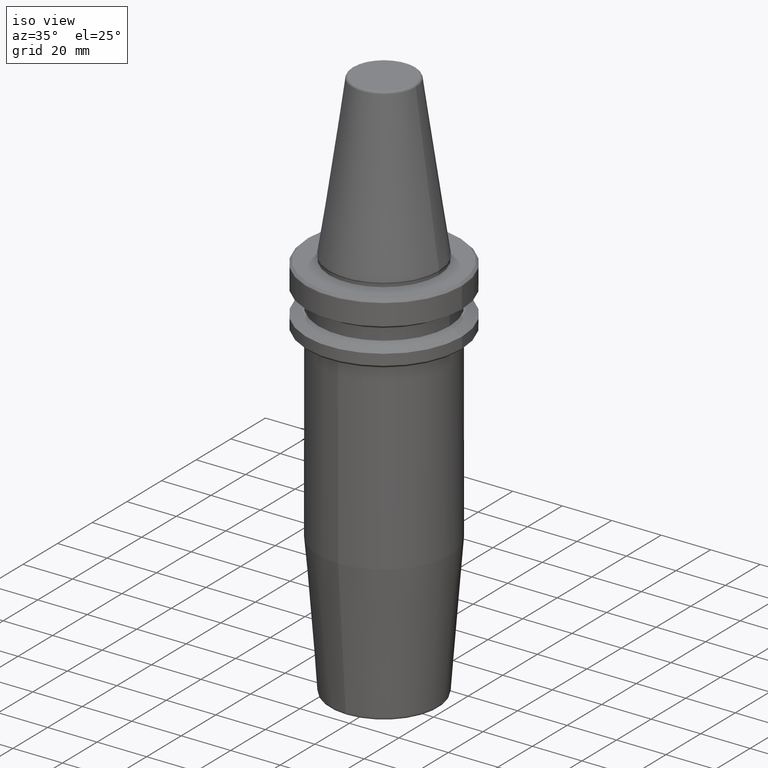
[diagram: clean part render]
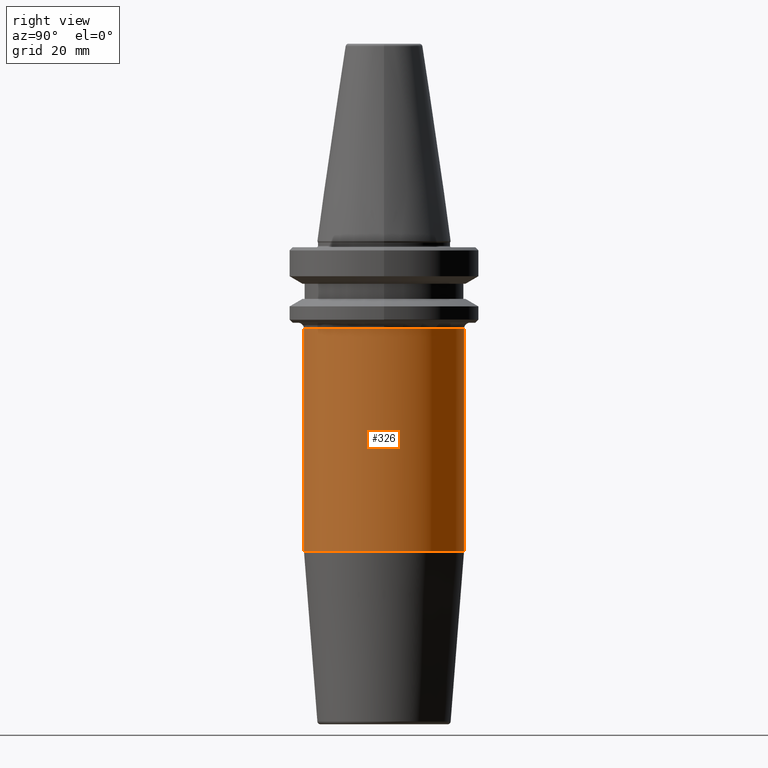
[diagram: tour spotlight — one face highlighted and labeled with its STEP entity id]
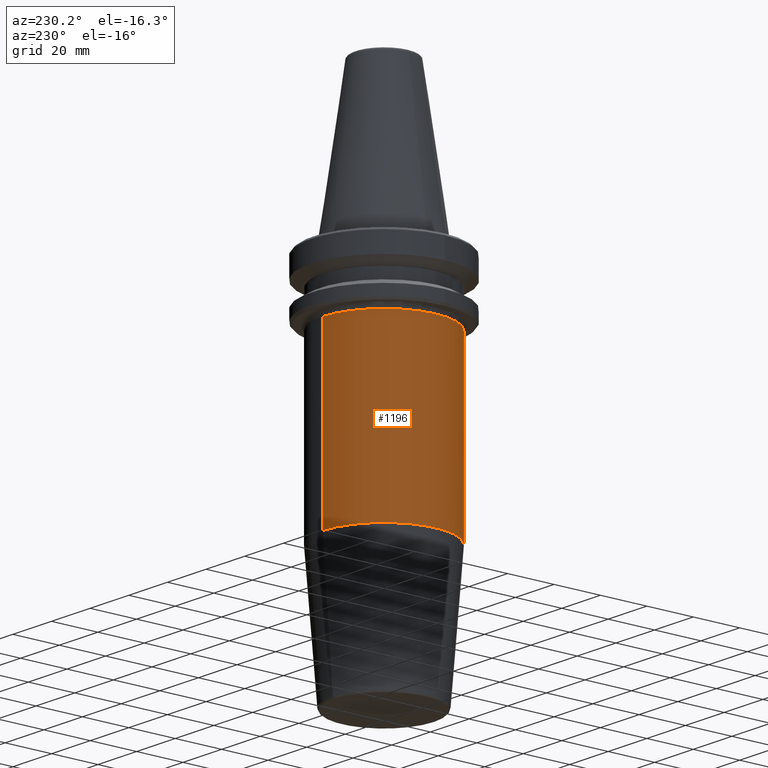
[diagram: tour spotlight — one face highlighted and labeled with its STEP entity id]
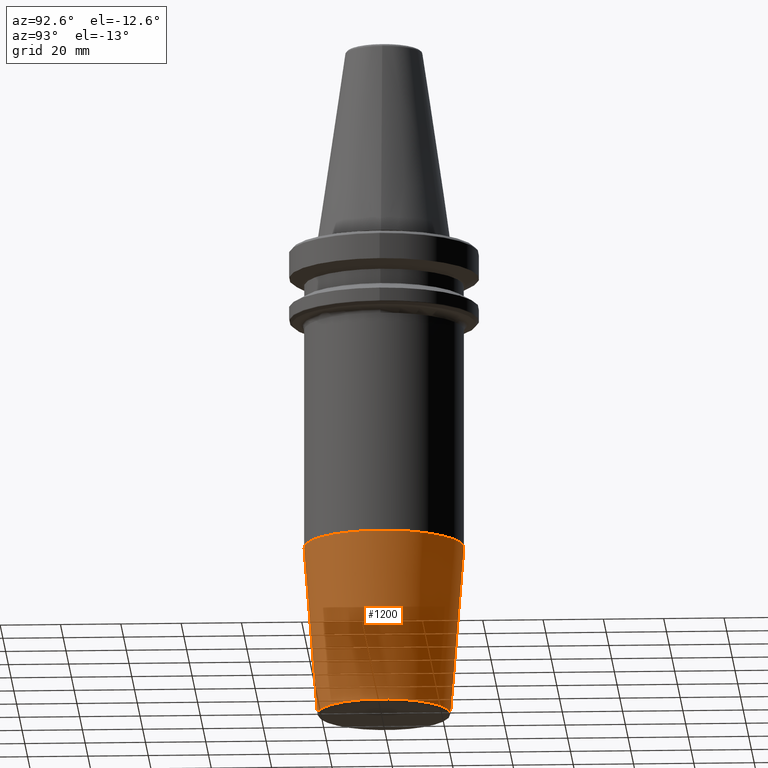
[diagram: tour spotlight — one face highlighted and labeled with its STEP entity id]
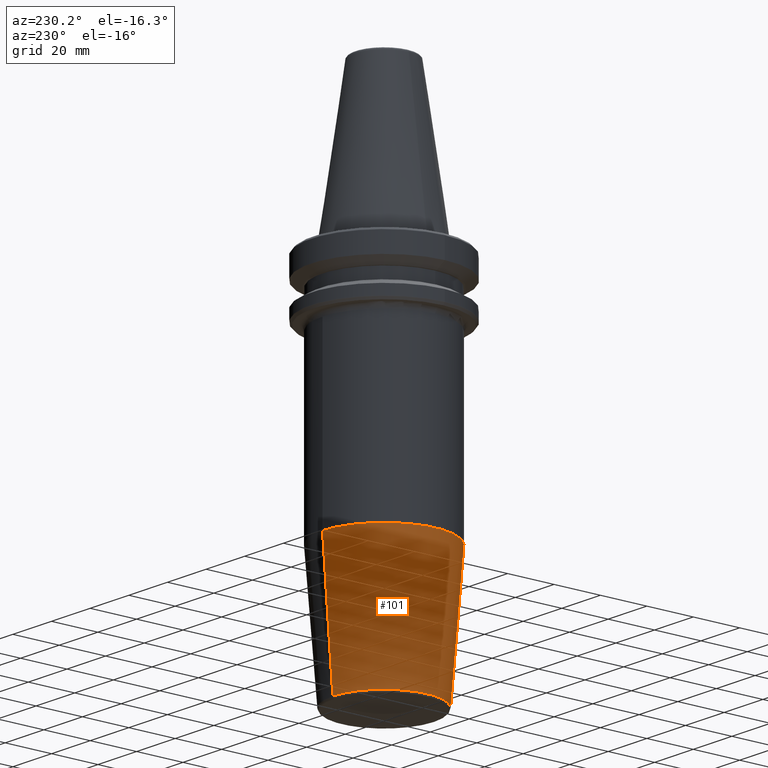
[diagram: tour spotlight — one face highlighted and labeled with its STEP entity id]
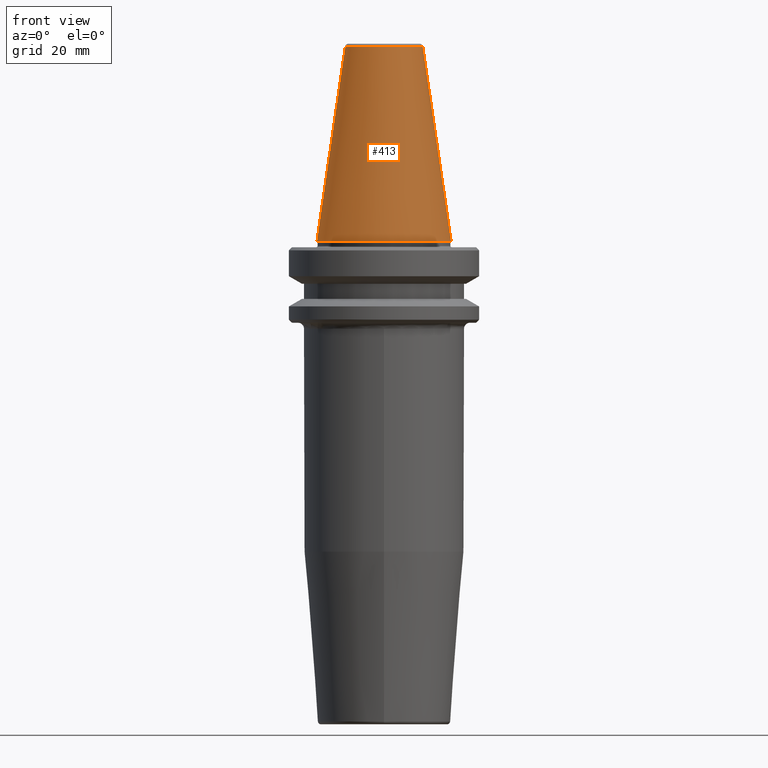
[diagram: tour spotlight — one face highlighted and labeled with its STEP entity id]
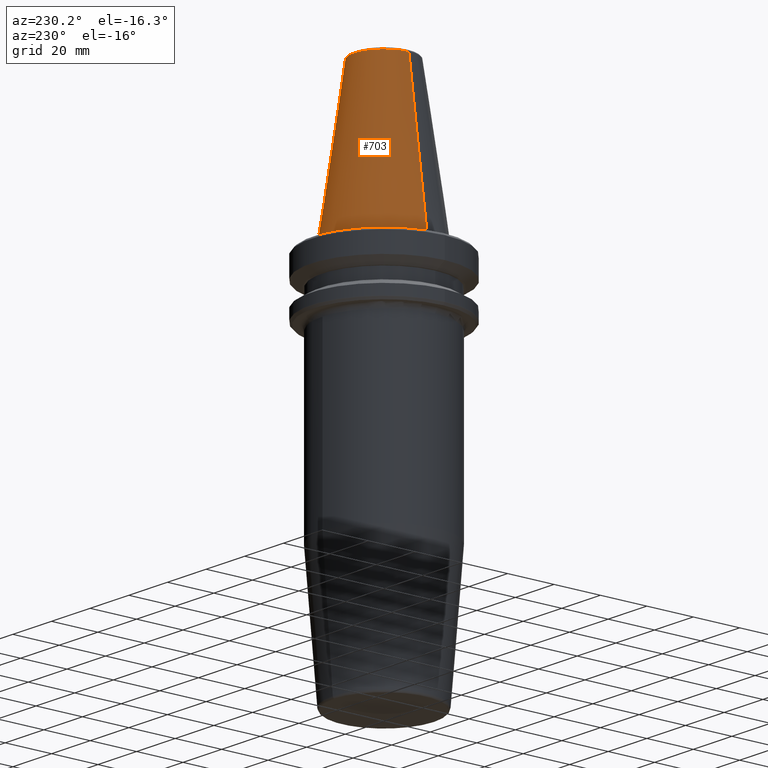
[diagram: tour spotlight — one face highlighted and labeled with its STEP entity id]
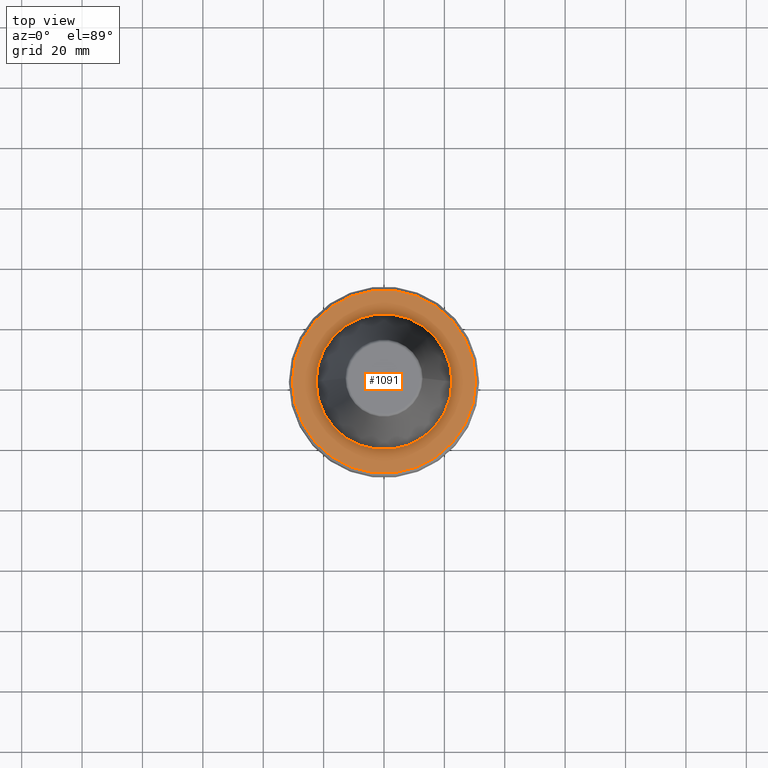
[diagram: tour spotlight — one face highlighted and labeled with its STEP entity id]
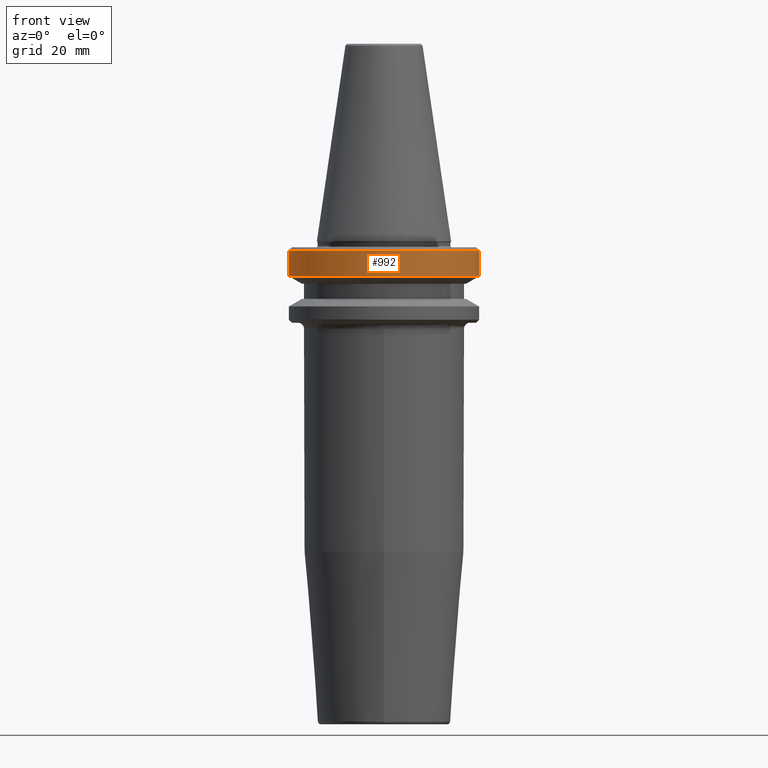
[diagram: tour spotlight — one face highlighted and labeled with its STEP entity id]
A machine part: a face-by-face anatomy tour. The part has 46 B-rep faces; the first image is the clean iso view, then the 8 largest visible faces are spotlighted one at a time (largest first), each with its STEP entity span.

Face 1 — right view, entity #326. In plain terms, the highlighted cylindrical surface (partial cylindrical patch) has radius 26.5 mm, axis along (-0, 0, -1).
Definition (entity closure, byte-faithful):
#55 = CYLINDRICAL_SURFACE ( 'NONE', #989, 26.49999999999999300 ) ;
#86 = FACE_OUTER_BOUND ( 'NONE', #943, .T. ) ;
#139 = CIRCLE ( 'NONE', #186, 26.49999999999999300 ) ;
#149 = ORIENTED_EDGE ( 'NONE', *, *, #713, .T. ) ;
#180 = VECTOR ( 'NONE', #340, 1000.000000000000000 ) ;
#185 = CARTESIAN_POINT ( 'NONE',  ( 3.245314017740485000E-015, -26.49999999999998200, -160.0000000000000000 ) ) ;
#186 = AXIS2_PLACEMENT_3D ( 'NONE', #334, #1009, #428 ) ;
#197 = ORIENTED_EDGE ( 'NONE', *, *, #953, .T. ) ;
#216 = AXIS2_PLACEMENT_3D ( 'NONE', #294, #976, #399 ) ;
#219 = VERTEX_POINT ( 'NONE', #1020 ) ;
#225 = EDGE_CURVE ( 'NONE', #779, #633, #749, .T. ) ;
#294 = CARTESIAN_POINT ( 'NONE',  ( 0.0000000000000000000, 1.510090789926056700E-016, -28.99999999999999600 ) ) ;
#298 = VECTOR ( 'NONE', #591, 1000.000000000000000 ) ;
#326 = ADVANCED_FACE ( 'NONE', ( #86 ), #55, .T. ) ;
#334 = CARTESIAN_POINT ( 'NONE',  ( 0.0000000000000000000, 1.510090789926056700E-016, -28.99999999999999600 ) ) ;
#340 = DIRECTION ( 'NONE',  ( -0.0000000000000000000, 7.550453949630299600E-017, -1.000000000000000000 ) ) ;
#348 = DIRECTION ( 'NONE',  ( -0.0000000000000000000, 7.550453949630299600E-017, -1.000000000000000000 ) ) ;
#355 = DIRECTION ( 'NONE',  ( -0.0000000000000000000, 7.550453949630299600E-017, -1.000000000000000000 ) ) ;
#357 = DIRECTION ( 'NONE',  ( 0.0000000000000000000, 1.000000000000000000, 0.0000000000000000000 ) ) ;
#384 = ORIENTED_EDGE ( 'NONE', *, *, #225, .T. ) ;
#399 = DIRECTION ( 'NONE',  ( -1.000000000000000000, 0.0000000000000000000, 0.0000000000000000000 ) ) ;
#428 = DIRECTION ( 'NONE',  ( -1.000000000000000000, 0.0000000000000000000, 0.0000000000000000000 ) ) ;
#522 = EDGE_CURVE ( 'NONE', #219, #704, #789, .T. ) ;
#530 = CARTESIAN_POINT ( 'NONE',  ( 26.49999999999999600, 3.518787776647826400E-015, -28.99999999999999600 ) ) ;
#591 = DIRECTION ( 'NONE',  ( -0.0000000000000000000, 7.550453949630299600E-017, -1.000000000000000000 ) ) ;
#633 = VERTEX_POINT ( 'NONE', #770 ) ;
#660 = CARTESIAN_POINT ( 'NONE',  ( 0.0000000000000000000, 1.004210375300829800E-014, -160.0000000000000000 ) ) ;
#704 = VERTEX_POINT ( 'NONE', #1077 ) ;
#713 = EDGE_CURVE ( 'NONE', #973, #779, #865, .T. ) ;
#749 = LINE ( 'NONE', #185, #180 ) ;
#770 = CARTESIAN_POINT ( 'NONE',  ( 0.0000000000000000000, -26.49999999999998900, -102.8220786872036000 ) ) ;
#779 = VERTEX_POINT ( 'NONE', #1271 ) ;
#789 = LINE ( 'NONE', #1269, #298 ) ;
#855 = ORIENTED_EDGE ( 'NONE', *, *, #1041, .F. ) ;
#858 = AXIS2_PLACEMENT_3D ( 'NONE', #930, #348, #1028 ) ;
#865 = CIRCLE ( 'NONE', #216, 26.49999999999999300 ) ;
#925 = CIRCLE ( 'NONE', #858, 26.49999999999999600 ) ;
#930 = CARTESIAN_POINT ( 'NONE',  ( 0.0000000000000000000, 5.724911134929757400E-015, -102.8220786872036000 ) ) ;
#943 = EDGE_LOOP ( 'NONE', ( #197, #149, #384, #855, #1182 ) ) ;
#953 = EDGE_CURVE ( 'NONE', #219, #973, #139, .T. ) ;
#973 = VERTEX_POINT ( 'NONE', #530 ) ;
#976 = DIRECTION ( 'NONE',  ( 0.0000000000000000000, 0.0000000000000000000, -1.000000000000000000 ) ) ;
#989 = AXIS2_PLACEMENT_3D ( 'NONE', #660, #355, #357 ) ;
#1009 = DIRECTION ( 'NONE',  ( 0.0000000000000000000, 0.0000000000000000000, -1.000000000000000000 ) ) ;
#1020 = CARTESIAN_POINT ( 'NONE',  ( 0.0000000000000000000, 26.49999999999999300, -28.99999999999999600 ) ) ;
#1028 = DIRECTION ( 'NONE',  ( 0.0000000000000000000, 1.000000000000000000, 0.0000000000000000000 ) ) ;
#1041 = EDGE_CURVE ( 'NONE', #704, #633, #925, .T. ) ;
#1077 = CARTESIAN_POINT ( 'NONE',  ( 3.245314017740485400E-015, 26.50000000000000400, -102.8220786872036000 ) ) ;
#1182 = ORIENTED_EDGE ( 'NONE', *, *, #522, .F. ) ;
#1269 = CARTESIAN_POINT ( 'NONE',  ( 0.0000000000000000000, 26.50000000000000400, -160.0000000000000000 ) ) ;
#1271 = CARTESIAN_POINT ( 'NONE',  ( 3.245314017740485800E-015, -26.49999999999999600, -28.99999999999999600 ) ) ;

Face 2 — auxiliary view, entity #1196. In plain terms, the highlighted cylindrical surface (partial cylindrical patch) has radius 26.5 mm, axis along (-0, 0, -1).
Definition (entity closure, byte-faithful):
#70 = EDGE_CURVE ( 'NONE', #779, #630, #769, .T. ) ;
#124 = CARTESIAN_POINT ( 'NONE',  ( 0.0000000000000000000, 1.510090789926056700E-016, -28.99999999999999600 ) ) ;
#146 = CARTESIAN_POINT ( 'NONE',  ( 0.0000000000000000000, 1.004210375300829800E-014, -160.0000000000000000 ) ) ;
#180 = VECTOR ( 'NONE', #340, 1000.000000000000000 ) ;
#185 = CARTESIAN_POINT ( 'NONE',  ( 3.245314017740485000E-015, -26.49999999999998200, -160.0000000000000000 ) ) ;
#219 = VERTEX_POINT ( 'NONE', #1020 ) ;
#225 = EDGE_CURVE ( 'NONE', #779, #633, #749, .T. ) ;
#269 = ORIENTED_EDGE ( 'NONE', *, *, #522, .T. ) ;
#298 = VECTOR ( 'NONE', #591, 1000.000000000000000 ) ;
#309 = ORIENTED_EDGE ( 'NONE', *, *, #70, .T. ) ;
#321 = ORIENTED_EDGE ( 'NONE', *, *, #397, .T. ) ;
#327 = DIRECTION ( 'NONE',  ( -1.000000000000000000, 0.0000000000000000000, 0.0000000000000000000 ) ) ;
#340 = DIRECTION ( 'NONE',  ( -0.0000000000000000000, 7.550453949630299600E-017, -1.000000000000000000 ) ) ;
#376 = EDGE_CURVE ( 'NONE', #633, #704, #823, .T. ) ;
#397 = EDGE_CURVE ( 'NONE', #630, #219, #565, .T. ) ;
#427 = AXIS2_PLACEMENT_3D ( 'NONE', #124, #611, #820 ) ;
#440 = CARTESIAN_POINT ( 'NONE',  ( 0.0000000000000000000, 5.724911134929757400E-015, -102.8220786872036000 ) ) ;
#443 = EDGE_LOOP ( 'NONE', ( #902, #309, #321, #269, #606 ) ) ;
#479 = DIRECTION ( 'NONE',  ( -0.0000000000000000000, 7.550453949630299600E-017, -1.000000000000000000 ) ) ;
#480 = CYLINDRICAL_SURFACE ( 'NONE', #557, 26.49999999999999300 ) ;
#522 = EDGE_CURVE ( 'NONE', #219, #704, #789, .T. ) ;
#557 = AXIS2_PLACEMENT_3D ( 'NONE', #146, #1054, #949 ) ;
#565 = CIRCLE ( 'NONE', #1188, 26.49999999999999300 ) ;
#591 = DIRECTION ( 'NONE',  ( -0.0000000000000000000, 7.550453949630299600E-017, -1.000000000000000000 ) ) ;
#606 = ORIENTED_EDGE ( 'NONE', *, *, #376, .F. ) ;
#611 = DIRECTION ( 'NONE',  ( 0.0000000000000000000, 0.0000000000000000000, -1.000000000000000000 ) ) ;
#612 = DIRECTION ( 'NONE',  ( 0.0000000000000000000, 1.000000000000000000, 0.0000000000000000000 ) ) ;
#630 = VERTEX_POINT ( 'NONE', #961 ) ;
#633 = VERTEX_POINT ( 'NONE', #770 ) ;
#704 = VERTEX_POINT ( 'NONE', #1077 ) ;
#724 = DIRECTION ( 'NONE',  ( 0.0000000000000000000, 0.0000000000000000000, -1.000000000000000000 ) ) ;
#749 = LINE ( 'NONE', #185, #180 ) ;
#769 = CIRCLE ( 'NONE', #427, 26.49999999999999300 ) ;
#770 = CARTESIAN_POINT ( 'NONE',  ( 0.0000000000000000000, -26.49999999999998900, -102.8220786872036000 ) ) ;
#771 = CARTESIAN_POINT ( 'NONE',  ( 0.0000000000000000000, 1.510090789926056700E-016, -28.99999999999999600 ) ) ;
#779 = VERTEX_POINT ( 'NONE', #1271 ) ;
#789 = LINE ( 'NONE', #1269, #298 ) ;
#820 = DIRECTION ( 'NONE',  ( -1.000000000000000000, 0.0000000000000000000, 0.0000000000000000000 ) ) ;
#823 = CIRCLE ( 'NONE', #1060, 26.49999999999999600 ) ;
#902 = ORIENTED_EDGE ( 'NONE', *, *, #225, .F. ) ;
#949 = DIRECTION ( 'NONE',  ( 0.0000000000000000000, 1.000000000000000000, 0.0000000000000000000 ) ) ;
#961 = CARTESIAN_POINT ( 'NONE',  ( -26.49999999999999600, 1.510090789926056700E-016, -28.99999999999999600 ) ) ;
#1020 = CARTESIAN_POINT ( 'NONE',  ( 0.0000000000000000000, 26.49999999999999300, -28.99999999999999600 ) ) ;
#1029 = FACE_OUTER_BOUND ( 'NONE', #443, .T. ) ;
#1054 = DIRECTION ( 'NONE',  ( -0.0000000000000000000, 7.550453949630299600E-017, -1.000000000000000000 ) ) ;
#1060 = AXIS2_PLACEMENT_3D ( 'NONE', #440, #479, #612 ) ;
#1077 = CARTESIAN_POINT ( 'NONE',  ( 3.245314017740485400E-015, 26.50000000000000400, -102.8220786872036000 ) ) ;
#1188 = AXIS2_PLACEMENT_3D ( 'NONE', #771, #724, #327 ) ;
#1196 = ADVANCED_FACE ( 'NONE', ( #1029 ), #480, .T. ) ;
#1269 = CARTESIAN_POINT ( 'NONE',  ( 0.0000000000000000000, 26.50000000000000400, -160.0000000000000000 ) ) ;
#1271 = CARTESIAN_POINT ( 'NONE',  ( 3.245314017740485800E-015, -26.49999999999999600, -28.99999999999999600 ) ) ;

Face 3 — auxiliary view, entity #1200. In plain terms, the highlighted conical surface has half-angle 4.5 deg.
Definition (entity closure, byte-faithful):
#10 = VECTOR ( 'NONE', #563, 1000.000000000000100 ) ;
#57 = AXIS2_PLACEMENT_3D ( 'NONE', #1007, #423, #1114 ) ;
#112 = VERTEX_POINT ( 'NONE', #282 ) ;
#153 = DIRECTION ( 'NONE',  ( 0.0000000000000000000, -1.000000000000000000, 0.0000000000000000000 ) ) ;
#222 = ORIENTED_EDGE ( 'NONE', *, *, #1159, .F. ) ;
#243 = FACE_OUTER_BOUND ( 'NONE', #977, .T. ) ;
#258 = DIRECTION ( 'NONE',  ( 9.608468044708412500E-018, 0.07845909572783103800, 0.9969173337331289600 ) ) ;
#278 = EDGE_CURVE ( 'NONE', #112, #704, #424, .T. ) ;
#282 = CARTESIAN_POINT ( 'NONE',  ( 0.0000000000000000000, 22.07252684207491100, -159.0784590957277900 ) ) ;
#295 = ORIENTED_EDGE ( 'NONE', *, *, #1041, .T. ) ;
#348 = DIRECTION ( 'NONE',  ( -0.0000000000000000000, 7.550453949630299600E-017, -1.000000000000000000 ) ) ;
#423 = DIRECTION ( 'NONE',  ( -0.0000000000000000000, 7.550453949630299600E-017, -1.000000000000000000 ) ) ;
#424 = LINE ( 'NONE', #1017, #913 ) ;
#447 = CONICAL_SURFACE ( 'NONE', #625, 22.07252684207490000, 0.07853981633973095000 ) ;
#461 = CARTESIAN_POINT ( 'NONE',  ( 0.0000000000000000000, -22.07252684207489000, -159.0784590957277900 ) ) ;
#563 = DIRECTION ( 'NONE',  ( 0.0000000000000000000, -0.07845909572783117700, 0.9969173337331289600 ) ) ;
#625 = AXIS2_PLACEMENT_3D ( 'NONE', #1151, #1246, #153 ) ;
#633 = VERTEX_POINT ( 'NONE', #770 ) ;
#704 = VERTEX_POINT ( 'NONE', #1077 ) ;
#770 = CARTESIAN_POINT ( 'NONE',  ( 0.0000000000000000000, -26.49999999999998900, -102.8220786872036000 ) ) ;
#798 = LINE ( 'NONE', #461, #10 ) ;
#803 = VERTEX_POINT ( 'NONE', #984 ) ;
#858 = AXIS2_PLACEMENT_3D ( 'NONE', #930, #348, #1028 ) ;
#913 = VECTOR ( 'NONE', #258, 1000.000000000000100 ) ;
#914 = EDGE_CURVE ( 'NONE', #112, #803, #1199, .T. ) ;
#925 = CIRCLE ( 'NONE', #858, 26.49999999999999600 ) ;
#930 = CARTESIAN_POINT ( 'NONE',  ( 0.0000000000000000000, 5.724911134929757400E-015, -102.8220786872036000 ) ) ;
#977 = EDGE_LOOP ( 'NONE', ( #1162, #1239, #295, #222 ) ) ;
#984 = CARTESIAN_POINT ( 'NONE',  ( 2.703104934624106600E-015, -22.07252684207489000, -159.0784590957277900 ) ) ;
#1007 = CARTESIAN_POINT ( 'NONE',  ( 0.0000000000000000000, 9.972523231404218900E-015, -159.0784590957277900 ) ) ;
#1017 = CARTESIAN_POINT ( 'NONE',  ( 2.703104934624106200E-015, 22.07252684207491100, -159.0784590957277900 ) ) ;
#1028 = DIRECTION ( 'NONE',  ( 0.0000000000000000000, 1.000000000000000000, 0.0000000000000000000 ) ) ;
#1041 = EDGE_CURVE ( 'NONE', #704, #633, #925, .T. ) ;
#1077 = CARTESIAN_POINT ( 'NONE',  ( 3.245314017740485400E-015, 26.50000000000000400, -102.8220786872036000 ) ) ;
#1114 = DIRECTION ( 'NONE',  ( 0.0000000000000000000, 1.000000000000000000, 0.0000000000000000000 ) ) ;
#1151 = CARTESIAN_POINT ( 'NONE',  ( 0.0000000000000000000, 9.972523231404218900E-015, -159.0784590957277900 ) ) ;
#1159 = EDGE_CURVE ( 'NONE', #803, #633, #798, .T. ) ;
#1162 = ORIENTED_EDGE ( 'NONE', *, *, #914, .F. ) ;
#1199 = CIRCLE ( 'NONE', #57, 22.07252684207490000 ) ;
#1200 = ADVANCED_FACE ( 'NONE', ( #243 ), #447, .T. ) ;
#1239 = ORIENTED_EDGE ( 'NONE', *, *, #278, .T. ) ;
#1246 = DIRECTION ( 'NONE',  ( 0.0000000000000000000, -7.550453949630299600E-017, 1.000000000000000000 ) ) ;

Face 4 — auxiliary view, entity #101. In plain terms, the highlighted conical surface has half-angle 4.5 deg.
Definition (entity closure, byte-faithful):
#10 = VECTOR ( 'NONE', #563, 1000.000000000000100 ) ;
#81 = ORIENTED_EDGE ( 'NONE', *, *, #573, .F. ) ;
#101 = ADVANCED_FACE ( 'NONE', ( #476 ), #581, .T. ) ;
#112 = VERTEX_POINT ( 'NONE', #282 ) ;
#258 = DIRECTION ( 'NONE',  ( 9.608468044708412500E-018, 0.07845909572783103800, 0.9969173337331289600 ) ) ;
#265 = CARTESIAN_POINT ( 'NONE',  ( 0.0000000000000000000, 9.972523231404218900E-015, -159.0784590957277900 ) ) ;
#278 = EDGE_CURVE ( 'NONE', #112, #704, #424, .T. ) ;
#282 = CARTESIAN_POINT ( 'NONE',  ( 0.0000000000000000000, 22.07252684207491100, -159.0784590957277900 ) ) ;
#288 = ORIENTED_EDGE ( 'NONE', *, *, #1159, .T. ) ;
#373 = DIRECTION ( 'NONE',  ( 0.0000000000000000000, 1.000000000000000000, 0.0000000000000000000 ) ) ;
#376 = EDGE_CURVE ( 'NONE', #633, #704, #823, .T. ) ;
#424 = LINE ( 'NONE', #1017, #913 ) ;
#440 = CARTESIAN_POINT ( 'NONE',  ( 0.0000000000000000000, 5.724911134929757400E-015, -102.8220786872036000 ) ) ;
#455 = ORIENTED_EDGE ( 'NONE', *, *, #376, .T. ) ;
#461 = CARTESIAN_POINT ( 'NONE',  ( 0.0000000000000000000, -22.07252684207489000, -159.0784590957277900 ) ) ;
#476 = FACE_OUTER_BOUND ( 'NONE', #1037, .T. ) ;
#479 = DIRECTION ( 'NONE',  ( -0.0000000000000000000, 7.550453949630299600E-017, -1.000000000000000000 ) ) ;
#517 = AXIS2_PLACEMENT_3D ( 'NONE', #265, #952, #373 ) ;
#563 = DIRECTION ( 'NONE',  ( 0.0000000000000000000, -0.07845909572783117700, 0.9969173337331289600 ) ) ;
#573 = EDGE_CURVE ( 'NONE', #803, #112, #759, .T. ) ;
#581 = CONICAL_SURFACE ( 'NONE', #821, 22.07252684207490000, 0.07853981633973095000 ) ;
#612 = DIRECTION ( 'NONE',  ( 0.0000000000000000000, 1.000000000000000000, 0.0000000000000000000 ) ) ;
#633 = VERTEX_POINT ( 'NONE', #770 ) ;
#704 = VERTEX_POINT ( 'NONE', #1077 ) ;
#714 = ORIENTED_EDGE ( 'NONE', *, *, #278, .F. ) ;
#759 = CIRCLE ( 'NONE', #517, 22.07252684207490000 ) ;
#770 = CARTESIAN_POINT ( 'NONE',  ( 0.0000000000000000000, -26.49999999999998900, -102.8220786872036000 ) ) ;
#798 = LINE ( 'NONE', #461, #10 ) ;
#803 = VERTEX_POINT ( 'NONE', #984 ) ;
#821 = AXIS2_PLACEMENT_3D ( 'NONE', #1036, #993, #1195 ) ;
#823 = CIRCLE ( 'NONE', #1060, 26.49999999999999600 ) ;
#913 = VECTOR ( 'NONE', #258, 1000.000000000000100 ) ;
#952 = DIRECTION ( 'NONE',  ( -0.0000000000000000000, 7.550453949630299600E-017, -1.000000000000000000 ) ) ;
#984 = CARTESIAN_POINT ( 'NONE',  ( 2.703104934624106600E-015, -22.07252684207489000, -159.0784590957277900 ) ) ;
#993 = DIRECTION ( 'NONE',  ( 0.0000000000000000000, -7.550453949630299600E-017, 1.000000000000000000 ) ) ;
#1017 = CARTESIAN_POINT ( 'NONE',  ( 2.703104934624106200E-015, 22.07252684207491100, -159.0784590957277900 ) ) ;
#1036 = CARTESIAN_POINT ( 'NONE',  ( 0.0000000000000000000, 9.972523231404218900E-015, -159.0784590957277900 ) ) ;
#1037 = EDGE_LOOP ( 'NONE', ( #714, #81, #288, #455 ) ) ;
#1060 = AXIS2_PLACEMENT_3D ( 'NONE', #440, #479, #612 ) ;
#1077 = CARTESIAN_POINT ( 'NONE',  ( 3.245314017740485400E-015, 26.50000000000000400, -102.8220786872036000 ) ) ;
#1159 = EDGE_CURVE ( 'NONE', #803, #633, #798, .T. ) ;
#1195 = DIRECTION ( 'NONE',  ( 0.0000000000000000000, -1.000000000000000000, 0.0000000000000000000 ) ) ;

Face 5 — front view, entity #413. In plain terms, the highlighted conical surface has half-angle 8.297 deg.
Definition (entity closure, byte-faithful):
#8 = CARTESIAN_POINT ( 'NONE',  ( 12.81219950706224800, 2.145409711370550300E-015, 64.54430822726730800 ) ) ;
#17 = VERTEX_POINT ( 'NONE', #874 ) ;
#38 = DIRECTION ( 'NONE',  ( 0.1443082272673071000, 1.767266086135364600E-017, -0.9895327864921743500 ) ) ;
#41 = CARTESIAN_POINT ( 'NONE',  ( 12.81219950706224800, 1.569041911636107800E-015, 64.54430822726730800 ) ) ;
#64 = CARTESIAN_POINT ( 'NONE',  ( -12.81219950706224800, 0.0000000000000000000, 64.54430822726730800 ) ) ;
#102 = DIRECTION ( 'NONE',  ( -0.0000000000000000000, -0.0000000000000000000, 1.000000000000000000 ) ) ;
#212 = VECTOR ( 'NONE', #431, 1000.000000000000000 ) ;
#224 = EDGE_CURVE ( 'NONE', #1251, #470, #969, .T. ) ;
#314 = CARTESIAN_POINT ( 'NONE',  ( -22.22500000000000500, 2.721777511104993200E-015, 0.0000000000000000000 ) ) ;
#320 = AXIS2_PLACEMENT_3D ( 'NONE', #946, #368, #1050 ) ;
#335 = FACE_OUTER_BOUND ( 'NONE', #922, .T. ) ;
#368 = DIRECTION ( 'NONE',  ( -0.0000000000000000000, -0.0000000000000000000, 1.000000000000000000 ) ) ;
#392 = EDGE_CURVE ( 'NONE', #882, #17, #1053, .T. ) ;
#413 = ADVANCED_FACE ( 'NONE', ( #335 ), #1248, .T. ) ;
#431 = DIRECTION ( 'NONE',  ( -0.1443082272673071000, 0.0000000000000000000, -0.9895327864921743500 ) ) ;
#470 = VERTEX_POINT ( 'NONE', #314 ) ;
#528 = EDGE_CURVE ( 'NONE', #1251, #882, #1015, .T. ) ;
#566 = CARTESIAN_POINT ( 'NONE',  ( 0.0000000000000000000, 0.0000000000000000000, 64.54430822726730800 ) ) ;
#584 = ORIENTED_EDGE ( 'NONE', *, *, #392, .F. ) ;
#613 = ORIENTED_EDGE ( 'NONE', *, *, #528, .F. ) ;
#708 = CARTESIAN_POINT ( 'NONE',  ( 0.0000000000000000000, 0.0000000000000000000, 0.0000000000000000000 ) ) ;
#790 = VECTOR ( 'NONE', #38, 1000.000000000000000 ) ;
#802 = DIRECTION ( 'NONE',  ( 1.000000000000000000, 0.0000000000000000000, 0.0000000000000000000 ) ) ;
#812 = DIRECTION ( 'NONE',  ( 0.0000000000000000000, 0.0000000000000000000, -1.000000000000000000 ) ) ;
#849 = EDGE_CURVE ( 'NONE', #470, #17, #998, .T. ) ;
#874 = CARTESIAN_POINT ( 'NONE',  ( 22.22500000000000500, 0.0000000000000000000, 0.0000000000000000000 ) ) ;
#882 = VERTEX_POINT ( 'NONE', #8 ) ;
#922 = EDGE_LOOP ( 'NONE', ( #584, #613, #1267, #959 ) ) ;
#945 = AXIS2_PLACEMENT_3D ( 'NONE', #708, #102, #802 ) ;
#946 = CARTESIAN_POINT ( 'NONE',  ( 0.0000000000000000000, 0.0000000000000000000, 64.54430822726730800 ) ) ;
#959 = ORIENTED_EDGE ( 'NONE', *, *, #849, .T. ) ;
#969 = LINE ( 'NONE', #1132, #212 ) ;
#998 = CIRCLE ( 'NONE', #945, 22.22500000000000500 ) ;
#1015 = CIRCLE ( 'NONE', #320, 12.81219950706224800 ) ;
#1050 = DIRECTION ( 'NONE',  ( 1.000000000000000000, 0.0000000000000000000, 0.0000000000000000000 ) ) ;
#1053 = LINE ( 'NONE', #41, #790 ) ;
#1099 = DIRECTION ( 'NONE',  ( -1.000000000000000000, 0.0000000000000000000, 0.0000000000000000000 ) ) ;
#1132 = CARTESIAN_POINT ( 'NONE',  ( -12.81219950706224800, 0.0000000000000000000, 64.54430822726730800 ) ) ;
#1248 = CONICAL_SURFACE ( 'NONE', #1253, 12.81219950706224800, 0.1448138465474191100 ) ;
#1251 = VERTEX_POINT ( 'NONE', #64 ) ;
#1253 = AXIS2_PLACEMENT_3D ( 'NONE', #566, #812, #1099 ) ;
#1267 = ORIENTED_EDGE ( 'NONE', *, *, #224, .T. ) ;

Face 6 — auxiliary view, entity #703. In plain terms, the highlighted conical surface has half-angle 8.297 deg.
Definition (entity closure, byte-faithful):
#8 = CARTESIAN_POINT ( 'NONE',  ( 12.81219950706224800, 2.145409711370550300E-015, 64.54430822726730800 ) ) ;
#9 = EDGE_CURVE ( 'NONE', #882, #1251, #1062, .T. ) ;
#14 = CIRCLE ( 'NONE', #1278, 22.22500000000000500 ) ;
#17 = VERTEX_POINT ( 'NONE', #874 ) ;
#19 = AXIS2_PLACEMENT_3D ( 'NONE', #395, #596, #129 ) ;
#21 = EDGE_LOOP ( 'NONE', ( #188, #1145, #1173, #592 ) ) ;
#38 = DIRECTION ( 'NONE',  ( 0.1443082272673071000, 1.767266086135364600E-017, -0.9895327864921743500 ) ) ;
#41 = CARTESIAN_POINT ( 'NONE',  ( 12.81219950706224800, 1.569041911636107800E-015, 64.54430822726730800 ) ) ;
#64 = CARTESIAN_POINT ( 'NONE',  ( -12.81219950706224800, 0.0000000000000000000, 64.54430822726730800 ) ) ;
#79 = DIRECTION ( 'NONE',  ( 0.0000000000000000000, 0.0000000000000000000, -1.000000000000000000 ) ) ;
#80 = AXIS2_PLACEMENT_3D ( 'NONE', #483, #79, #1266 ) ;
#110 = DIRECTION ( 'NONE',  ( 1.000000000000000000, 0.0000000000000000000, 0.0000000000000000000 ) ) ;
#129 = DIRECTION ( 'NONE',  ( 1.000000000000000000, 0.0000000000000000000, 0.0000000000000000000 ) ) ;
#176 = EDGE_CURVE ( 'NONE', #17, #470, #14, .T. ) ;
#188 = ORIENTED_EDGE ( 'NONE', *, *, #9, .F. ) ;
#212 = VECTOR ( 'NONE', #431, 1000.000000000000000 ) ;
#224 = EDGE_CURVE ( 'NONE', #1251, #470, #969, .T. ) ;
#314 = CARTESIAN_POINT ( 'NONE',  ( -22.22500000000000500, 2.721777511104993200E-015, 0.0000000000000000000 ) ) ;
#346 = CONICAL_SURFACE ( 'NONE', #80, 12.81219950706224800, 0.1448138465474191100 ) ;
#392 = EDGE_CURVE ( 'NONE', #882, #17, #1053, .T. ) ;
#395 = CARTESIAN_POINT ( 'NONE',  ( 0.0000000000000000000, 0.0000000000000000000, 64.54430822726730800 ) ) ;
#431 = DIRECTION ( 'NONE',  ( -0.1443082272673071000, 0.0000000000000000000, -0.9895327864921743500 ) ) ;
#470 = VERTEX_POINT ( 'NONE', #314 ) ;
#483 = CARTESIAN_POINT ( 'NONE',  ( 0.0000000000000000000, 0.0000000000000000000, 64.54430822726730800 ) ) ;
#592 = ORIENTED_EDGE ( 'NONE', *, *, #224, .F. ) ;
#596 = DIRECTION ( 'NONE',  ( -0.0000000000000000000, -0.0000000000000000000, 1.000000000000000000 ) ) ;
#703 = ADVANCED_FACE ( 'NONE', ( #1157 ), #346, .T. ) ;
#790 = VECTOR ( 'NONE', #38, 1000.000000000000000 ) ;
#874 = CARTESIAN_POINT ( 'NONE',  ( 22.22500000000000500, 0.0000000000000000000, 0.0000000000000000000 ) ) ;
#882 = VERTEX_POINT ( 'NONE', #8 ) ;
#904 = CARTESIAN_POINT ( 'NONE',  ( 0.0000000000000000000, 0.0000000000000000000, 0.0000000000000000000 ) ) ;
#969 = LINE ( 'NONE', #1132, #212 ) ;
#1053 = LINE ( 'NONE', #41, #790 ) ;
#1062 = CIRCLE ( 'NONE', #19, 12.81219950706224800 ) ;
#1132 = CARTESIAN_POINT ( 'NONE',  ( -12.81219950706224800, 0.0000000000000000000, 64.54430822726730800 ) ) ;
#1145 = ORIENTED_EDGE ( 'NONE', *, *, #392, .T. ) ;
#1157 = FACE_OUTER_BOUND ( 'NONE', #21, .T. ) ;
#1173 = ORIENTED_EDGE ( 'NONE', *, *, #176, .T. ) ;
#1181 = DIRECTION ( 'NONE',  ( -0.0000000000000000000, -0.0000000000000000000, 1.000000000000000000 ) ) ;
#1251 = VERTEX_POINT ( 'NONE', #64 ) ;
#1266 = DIRECTION ( 'NONE',  ( -1.000000000000000000, 0.0000000000000000000, 0.0000000000000000000 ) ) ;
#1278 = AXIS2_PLACEMENT_3D ( 'NONE', #904, #1181, #110 ) ;

Face 7 — top view, entity #1091. In plain terms, the highlighted planar face has unit normal (0, -0, 1).
Definition (entity closure, byte-faithful):
#13 = ORIENTED_EDGE ( 'NONE', *, *, #970, .F. ) ;
#44 = EDGE_LOOP ( 'NONE', ( #558, #1124 ) ) ;
#45 = DIRECTION ( 'NONE',  ( 1.000000000000000000, 0.0000000000000000000, 0.0000000000000000000 ) ) ;
#66 = CARTESIAN_POINT ( 'NONE',  ( 22.50000000000000000, 0.0000000000000000000, -2.000000000000001300 ) ) ;
#97 = FACE_BOUND ( 'NONE', #179, .T. ) ;
#136 = VERTEX_POINT ( 'NONE', #804 ) ;
#145 = CARTESIAN_POINT ( 'NONE',  ( 0.0000000000000000000, 0.0000000000000000000, -2.000000000000001800 ) ) ;
#150 = EDGE_CURVE ( 'NONE', #136, #616, #1069, .T. ) ;
#179 = EDGE_LOOP ( 'NONE', ( #13, #838 ) ) ;
#227 = DIRECTION ( 'NONE',  ( -0.0000000000000000000, -0.0000000000000000000, 1.000000000000000000 ) ) ;
#232 = DIRECTION ( 'NONE',  ( 1.000000000000000000, 0.0000000000000000000, 0.0000000000000000000 ) ) ;
#302 = CIRCLE ( 'NONE', #1129, 30.33431457505076200 ) ;
#318 = EDGE_CURVE ( 'NONE', #351, #375, #1144, .T. ) ;
#337 = AXIS2_PLACEMENT_3D ( 'NONE', #822, #227, #918 ) ;
#347 = DIRECTION ( 'NONE',  ( -0.0000000000000000000, -0.0000000000000000000, 1.000000000000000000 ) ) ;
#351 = VERTEX_POINT ( 'NONE', #639 ) ;
#356 = DIRECTION ( 'NONE',  ( -0.0000000000000000000, -0.0000000000000000000, 1.000000000000000000 ) ) ;
#375 = VERTEX_POINT ( 'NONE', #825 ) ;
#378 = CARTESIAN_POINT ( 'NONE',  ( 0.0000000000000000000, 0.0000000000000000000, -2.000000000000001800 ) ) ;
#389 = EDGE_CURVE ( 'NONE', #375, #351, #302, .T. ) ;
#390 = DIRECTION ( 'NONE',  ( -0.0000000000000000000, -0.0000000000000000000, 1.000000000000000000 ) ) ;
#394 = CIRCLE ( 'NONE', #337, 22.50000000000000000 ) ;
#512 = DIRECTION ( 'NONE',  ( 1.000000000000000000, 0.0000000000000000000, 0.0000000000000000000 ) ) ;
#558 = ORIENTED_EDGE ( 'NONE', *, *, #389, .T. ) ;
#589 = CARTESIAN_POINT ( 'NONE',  ( 0.0000000000000000000, 0.0000000000000000000, -2.000000000000001800 ) ) ;
#603 = AXIS2_PLACEMENT_3D ( 'NONE', #145, #356, #1254 ) ;
#616 = VERTEX_POINT ( 'NONE', #66 ) ;
#639 = CARTESIAN_POINT ( 'NONE',  ( -30.33431457505076200, 3.732201245991191800E-015, -2.000000000000001800 ) ) ;
#647 = DIRECTION ( 'NONE',  ( 0.0000000000000000000, -0.0000000000000000000, 1.000000000000000000 ) ) ;
#739 = CARTESIAN_POINT ( 'NONE',  ( 0.0000000000000000000, 0.0000000000000000000, -2.000000000000002700 ) ) ;
#804 = CARTESIAN_POINT ( 'NONE',  ( -22.50000000000000000, 2.755455298081544800E-015, -2.000000000000001300 ) ) ;
#822 = CARTESIAN_POINT ( 'NONE',  ( 0.0000000000000000000, 0.0000000000000000000, -2.000000000000001800 ) ) ;
#825 = CARTESIAN_POINT ( 'NONE',  ( 30.33431457505076200, 0.0000000000000000000, -2.000000000000001800 ) ) ;
#838 = ORIENTED_EDGE ( 'NONE', *, *, #150, .F. ) ;
#918 = DIRECTION ( 'NONE',  ( 1.000000000000000000, 0.0000000000000000000, 0.0000000000000000000 ) ) ;
#970 = EDGE_CURVE ( 'NONE', #616, #136, #394, .T. ) ;
#1032 = PLANE ( 'NONE',  #1250 ) ;
#1069 = CIRCLE ( 'NONE', #1149, 22.50000000000000000 ) ;
#1091 = ADVANCED_FACE ( 'NONE', ( #1130, #97 ), #1032, .T. ) ;
#1124 = ORIENTED_EDGE ( 'NONE', *, *, #318, .T. ) ;
#1129 = AXIS2_PLACEMENT_3D ( 'NONE', #378, #347, #232 ) ;
#1130 = FACE_OUTER_BOUND ( 'NONE', #44, .T. ) ;
#1144 = CIRCLE ( 'NONE', #603, 30.33431457505076200 ) ;
#1149 = AXIS2_PLACEMENT_3D ( 'NONE', #589, #390, #512 ) ;
#1250 = AXIS2_PLACEMENT_3D ( 'NONE', #739, #647, #45 ) ;
#1254 = DIRECTION ( 'NONE',  ( 1.000000000000000000, 0.0000000000000000000, 0.0000000000000000000 ) ) ;

Face 8 — front view, entity #992. In plain terms, the highlighted cylindrical surface (partial cylindrical patch) has radius 31.5 mm, axis along (-0, -0, 1).
Definition (entity closure, byte-faithful):
#37 = CARTESIAN_POINT ( 'NONE',  ( 0.0000000000000000000, 0.0000000000000000000, -11.59985799368323700 ) ) ;
#131 = FACE_OUTER_BOUND ( 'NONE', #211, .T. ) ;
#132 = VECTOR ( 'NONE', #867, 1000.000000000000000 ) ;
#134 = DIRECTION ( 'NONE',  ( 1.000000000000000000, 0.0000000000000000000, 0.0000000000000000000 ) ) ;
#161 = LINE ( 'NONE', #279, #437 ) ;
#177 = VERTEX_POINT ( 'NONE', #1109 ) ;
#211 = EDGE_LOOP ( 'NONE', ( #957, #1230, #877, #524 ) ) ;
#279 = CARTESIAN_POINT ( 'NONE',  ( 31.50000000000000000, 0.0000000000000000000, 69.75694866325665100 ) ) ;
#323 = VERTEX_POINT ( 'NONE', #842 ) ;
#437 = VECTOR ( 'NONE', #864, 1000.000000000000000 ) ;
#478 = DIRECTION ( 'NONE',  ( -0.0000000000000000000, -0.0000000000000000000, 1.000000000000000000 ) ) ;
#524 = ORIENTED_EDGE ( 'NONE', *, *, #637, .F. ) ;
#582 = CARTESIAN_POINT ( 'NONE',  ( -31.50000000000000000, 3.857637417314162700E-015, 69.75694866325665100 ) ) ;
#637 = EDGE_CURVE ( 'NONE', #177, #694, #926, .T. ) ;
#650 = EDGE_CURVE ( 'NONE', #323, #694, #161, .T. ) ;
#677 = EDGE_CURVE ( 'NONE', #1002, #177, #954, .T. ) ;
#694 = VERTEX_POINT ( 'NONE', #775 ) ;
#698 = CIRCLE ( 'NONE', #792, 31.50000000000000000 ) ;
#730 = CARTESIAN_POINT ( 'NONE',  ( 0.0000000000000000000, 0.0000000000000000000, 69.75694866325665100 ) ) ;
#732 = AXIS2_PLACEMENT_3D ( 'NONE', #730, #923, #1019 ) ;
#736 = DIRECTION ( 'NONE',  ( -0.0000000000000000000, -0.0000000000000000000, 1.000000000000000000 ) ) ;
#775 = CARTESIAN_POINT ( 'NONE',  ( 31.49999999999999300, 0.0000000000000000000, -3.165685424949243700 ) ) ;
#792 = AXIS2_PLACEMENT_3D ( 'NONE', #37, #736, #134 ) ;
#829 = CARTESIAN_POINT ( 'NONE',  ( -31.50000000000000000, 3.857637417314162700E-015, -11.59985799368323700 ) ) ;
#842 = CARTESIAN_POINT ( 'NONE',  ( 31.50000000000000000, 0.0000000000000000000, -11.59985799368323700 ) ) ;
#864 = DIRECTION ( 'NONE',  ( -0.0000000000000000000, -0.0000000000000000000, 1.000000000000000000 ) ) ;
#867 = DIRECTION ( 'NONE',  ( -0.0000000000000000000, -0.0000000000000000000, 1.000000000000000000 ) ) ;
#877 = ORIENTED_EDGE ( 'NONE', *, *, #650, .T. ) ;
#908 = AXIS2_PLACEMENT_3D ( 'NONE', #1066, #478, #1166 ) ;
#923 = DIRECTION ( 'NONE',  ( -0.0000000000000000000, -0.0000000000000000000, 1.000000000000000000 ) ) ;
#926 = CIRCLE ( 'NONE', #908, 31.49999999999999300 ) ;
#954 = LINE ( 'NONE', #582, #132 ) ;
#957 = ORIENTED_EDGE ( 'NONE', *, *, #677, .F. ) ;
#992 = ADVANCED_FACE ( 'NONE', ( #131 ), #1184, .T. ) ;
#1002 = VERTEX_POINT ( 'NONE', #829 ) ;
#1019 = DIRECTION ( 'NONE',  ( 1.000000000000000000, 0.0000000000000000000, 0.0000000000000000000 ) ) ;
#1025 = EDGE_CURVE ( 'NONE', #1002, #323, #698, .T. ) ;
#1066 = CARTESIAN_POINT ( 'NONE',  ( 0.0000000000000000000, 0.0000000000000000000, -3.165685424949243700 ) ) ;
#1109 = CARTESIAN_POINT ( 'NONE',  ( -31.49999999999999300, 3.857637417314161900E-015, -3.165685424949243700 ) ) ;
#1166 = DIRECTION ( 'NONE',  ( 1.000000000000000000, 0.0000000000000000000, 0.0000000000000000000 ) ) ;
#1184 = CYLINDRICAL_SURFACE ( 'NONE', #732, 31.50000000000000000 ) ;
#1230 = ORIENTED_EDGE ( 'NONE', *, *, #1025, .T. ) ;